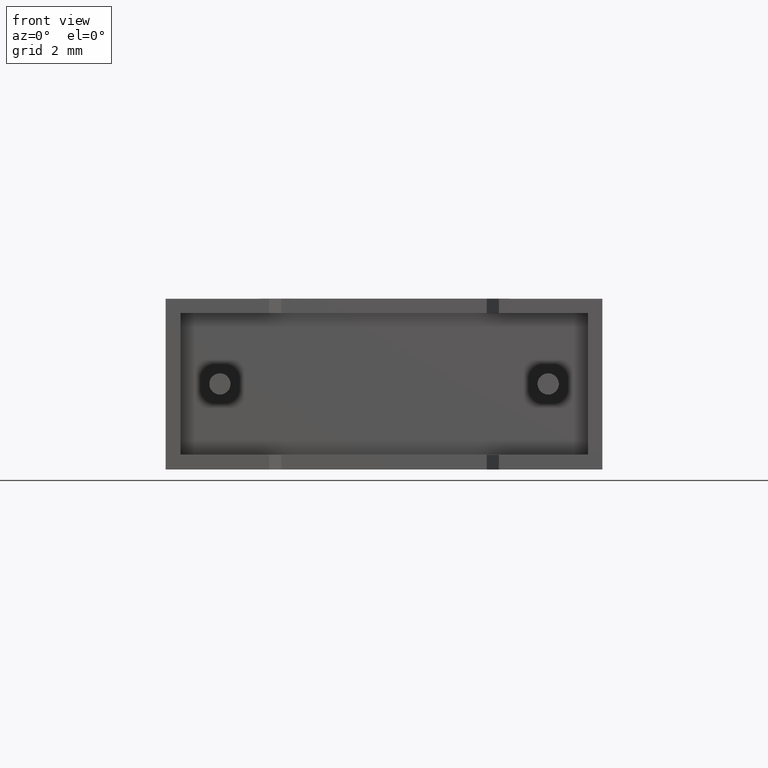
[diagram: clean part render]
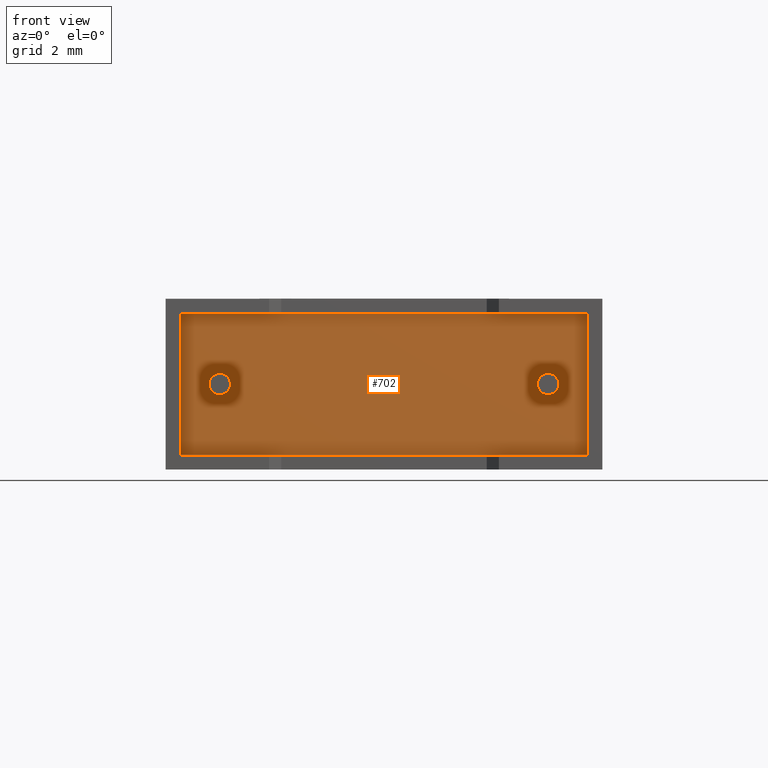
[diagram: same view with one face highlighted and labeled with its STEP entity id]
A machine part, front view. The second image highlights one B-rep face of the part: STEP entity #702.
In plain terms, the highlighted planar face has unit normal (0, -1, 0).
Its self-contained STEP definition (entity closure, byte-faithful):
#82 = CARTESIAN_POINT ( 'NONE',  ( 11.65000000000000036, 0.7499999999999997780, 2.925000000000000711 ) ) ;
#101 = EDGE_CURVE ( 'NONE', #2084, #918, #823, .T. ) ;
#102 = CARTESIAN_POINT ( 'NONE',  ( 0.4433332890000000193, 0.7500000000000000000, 0.4433332890000000193 ) ) ;
#118 = CIRCLE ( 'NONE', #398, 0.3250000000000006217 ) ;
#134 = DIRECTION ( 'NONE',  ( 0.000000000000000000, -1.000000000000000000, 0.000000000000000000 ) ) ;
#142 = CARTESIAN_POINT ( 'NONE',  ( 12.85666671100000080, 0.7500000000000000000, 0.4433332890000000193 ) ) ;
#145 = CARTESIAN_POINT ( 'NONE',  ( 0.000000000000000000, 0.7500000000000000000, 0.000000000000000000 ) ) ;
#181 = CARTESIAN_POINT ( 'NONE',  ( 12.85666671100000080, 0.7500000000000000000, 4.756666711000000269 ) ) ;
#184 = FACE_OUTER_BOUND ( 'NONE', #2861, .T. ) ;
#257 = VECTOR ( 'NONE', #751, 1000.000000000000000 ) ;
#309 = AXIS2_PLACEMENT_3D ( 'NONE', #145, #134, #2045 ) ;
#326 = DIRECTION ( 'NONE',  ( 0.000000000000000000, -1.000000000000000000, 0.000000000000000000 ) ) ;
#333 = EDGE_CURVE ( 'NONE', #1667, #1107, #2010, .T. ) ;
#363 = DIRECTION ( 'NONE',  ( 0.000000000000000000, 0.000000000000000000, -1.000000000000000000 ) ) ;
#364 = DIRECTION ( 'NONE',  ( 0.000000000000000000, 0.000000000000000000, 1.000000000000000000 ) ) ;
#370 = ORIENTED_EDGE ( 'NONE', *, *, #333, .T. ) ;
#380 = EDGE_CURVE ( 'NONE', #2504, #422, #882, .T. ) ;
#398 = AXIS2_PLACEMENT_3D ( 'NONE', #2947, #874, #363 ) ;
#422 = VERTEX_POINT ( 'NONE', #1582 ) ;
#587 = EDGE_CURVE ( 'NONE', #1107, #2084, #1012, .T. ) ;
#591 = VECTOR ( 'NONE', #3037, 1000.000000000000000 ) ;
#607 = EDGE_CURVE ( 'NONE', #1572, #2450, #1612, .T. ) ;
#626 = ORIENTED_EDGE ( 'NONE', *, *, #657, .F. ) ;
#657 = EDGE_CURVE ( 'NONE', #2450, #1572, #1988, .T. ) ;
#680 = CARTESIAN_POINT ( 'NONE',  ( 1.650000000000000355, 0.7500000000000000000, 2.925000000000000711 ) ) ;
#695 = ORIENTED_EDGE ( 'NONE', *, *, #587, .T. ) ;
#696 = ORIENTED_EDGE ( 'NONE', *, *, #607, .F. ) ;
#702 = ADVANCED_FACE ( 'NONE', ( #2766, #184, #1085 ), #1343, .T. ) ;
#751 = DIRECTION ( 'NONE',  ( 1.000000000000000000, 0.000000000000000000, 0.000000000000000000 ) ) ;
#823 = LINE ( 'NONE', #142, #2870 ) ;
#874 = DIRECTION ( 'NONE',  ( 0.000000000000000000, -1.000000000000000000, 0.000000000000000000 ) ) ;
#882 = CIRCLE ( 'NONE', #2623, 0.3250000000000006217 ) ;
#918 = VERTEX_POINT ( 'NONE', #2429 ) ;
#930 = VECTOR ( 'NONE', #2974, 1000.000000000000000 ) ;
#932 = ORIENTED_EDGE ( 'NONE', *, *, #1681, .F. ) ;
#1012 = LINE ( 'NONE', #102, #257 ) ;
#1046 = DIRECTION ( 'NONE',  ( 0.000000000000000000, -1.000000000000000000, 0.000000000000000000 ) ) ;
#1085 = FACE_BOUND ( 'NONE', #2026, .T. ) ;
#1104 = LINE ( 'NONE', #181, #591 ) ;
#1107 = VERTEX_POINT ( 'NONE', #1365 ) ;
#1222 = DIRECTION ( 'NONE',  ( 0.000000000000000000, 0.000000000000000000, -1.000000000000000000 ) ) ;
#1343 = PLANE ( 'NONE',  #309 ) ;
#1347 = CARTESIAN_POINT ( 'NONE',  ( 0.4433332889999999082, 0.7500000000000000000, 4.756666710999998493 ) ) ;
#1365 = CARTESIAN_POINT ( 'NONE',  ( 0.4433332890000000193, 0.7500000000000000000, 0.4433332890000000193 ) ) ;
#1485 = DIRECTION ( 'NONE',  ( 0.000000000000000000, 0.000000000000000000, -1.000000000000000000 ) ) ;
#1527 = CARTESIAN_POINT ( 'NONE',  ( 1.650000000000000355, 0.7500000000000000000, 2.600000000000000089 ) ) ;
#1538 = DIRECTION ( 'NONE',  ( 0.000000000000000000, -1.000000000000000000, 0.000000000000000000 ) ) ;
#1572 = VERTEX_POINT ( 'NONE', #82 ) ;
#1582 = CARTESIAN_POINT ( 'NONE',  ( 1.650000000000000355, 0.7500000000000000000, 2.274999999999999467 ) ) ;
#1612 = CIRCLE ( 'NONE', #2480, 0.3250000000000006217 ) ;
#1667 = VERTEX_POINT ( 'NONE', #1347 ) ;
#1681 = EDGE_CURVE ( 'NONE', #422, #2504, #118, .T. ) ;
#1799 = DIRECTION ( 'NONE',  ( 0.000000000000000000, 0.000000000000000000, -1.000000000000000000 ) ) ;
#1801 = EDGE_CURVE ( 'NONE', #918, #1667, #1104, .T. ) ;
#1857 = CARTESIAN_POINT ( 'NONE',  ( 11.65000000000000036, 0.7499999999999997780, 2.274999999999999467 ) ) ;
#1928 = CARTESIAN_POINT ( 'NONE',  ( 11.65000000000000036, 0.7499999999999997780, 2.600000000000000089 ) ) ;
#1988 = CIRCLE ( 'NONE', #2366, 0.3250000000000006217 ) ;
#2000 = ORIENTED_EDGE ( 'NONE', *, *, #1801, .T. ) ;
#2010 = LINE ( 'NONE', #2274, #930 ) ;
#2026 = EDGE_LOOP ( 'NONE', ( #2833, #932 ) ) ;
#2045 = DIRECTION ( 'NONE',  ( 0.000000000000000000, -0.000000000000000000, -1.000000000000000000 ) ) ;
#2049 = CARTESIAN_POINT ( 'NONE',  ( 12.85666671100000080, 0.7500000000000000000, 0.4433332890000000193 ) ) ;
#2084 = VERTEX_POINT ( 'NONE', #2049 ) ;
#2148 = EDGE_LOOP ( 'NONE', ( #696, #626 ) ) ;
#2224 = CARTESIAN_POINT ( 'NONE',  ( 11.65000000000000036, 0.7499999999999997780, 2.600000000000000089 ) ) ;
#2272 = ORIENTED_EDGE ( 'NONE', *, *, #101, .T. ) ;
#2274 = CARTESIAN_POINT ( 'NONE',  ( 0.4433332889999999082, 0.7500000000000000000, 4.756666710999998493 ) ) ;
#2366 = AXIS2_PLACEMENT_3D ( 'NONE', #1928, #326, #1485 ) ;
#2429 = CARTESIAN_POINT ( 'NONE',  ( 12.85666671100000080, 0.7500000000000000000, 4.756666711000000269 ) ) ;
#2450 = VERTEX_POINT ( 'NONE', #1857 ) ;
#2480 = AXIS2_PLACEMENT_3D ( 'NONE', #2224, #1046, #1222 ) ;
#2504 = VERTEX_POINT ( 'NONE', #680 ) ;
#2623 = AXIS2_PLACEMENT_3D ( 'NONE', #1527, #1538, #1799 ) ;
#2766 = FACE_BOUND ( 'NONE', #2148, .T. ) ;
#2833 = ORIENTED_EDGE ( 'NONE', *, *, #380, .F. ) ;
#2861 = EDGE_LOOP ( 'NONE', ( #370, #695, #2272, #2000 ) ) ;
#2870 = VECTOR ( 'NONE', #364, 1000.000000000000000 ) ;
#2947 = CARTESIAN_POINT ( 'NONE',  ( 1.650000000000000355, 0.7500000000000000000, 2.600000000000000089 ) ) ;
#2974 = DIRECTION ( 'NONE',  ( 2.513606221479589745E-17, 0.000000000000000000, -1.000000000000000000 ) ) ;
#3037 = DIRECTION ( 'NONE',  ( -1.000000000000000000, 0.000000000000000000, -1.397467881513903204E-16 ) ) ;